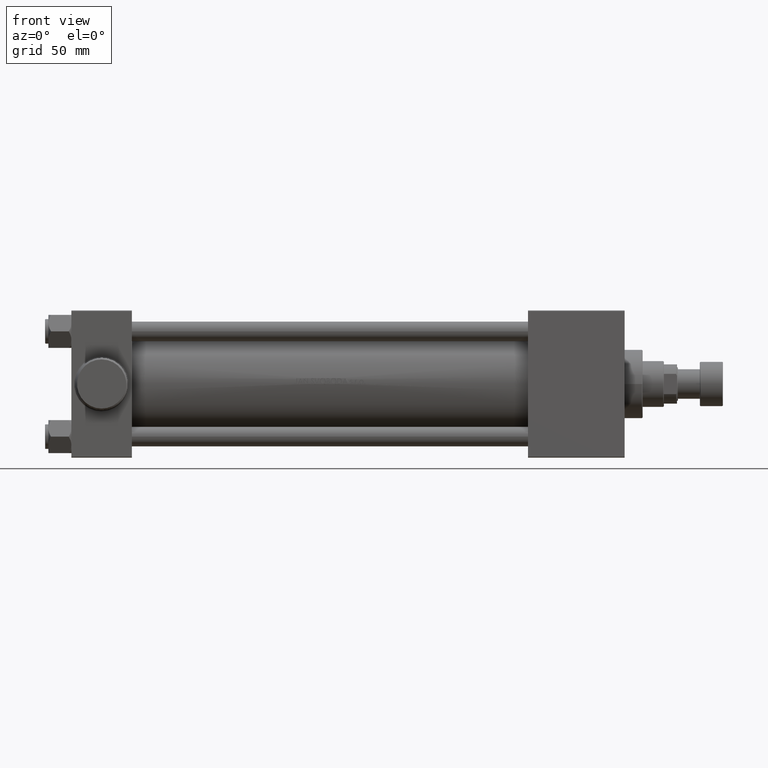
[diagram: clean part render]
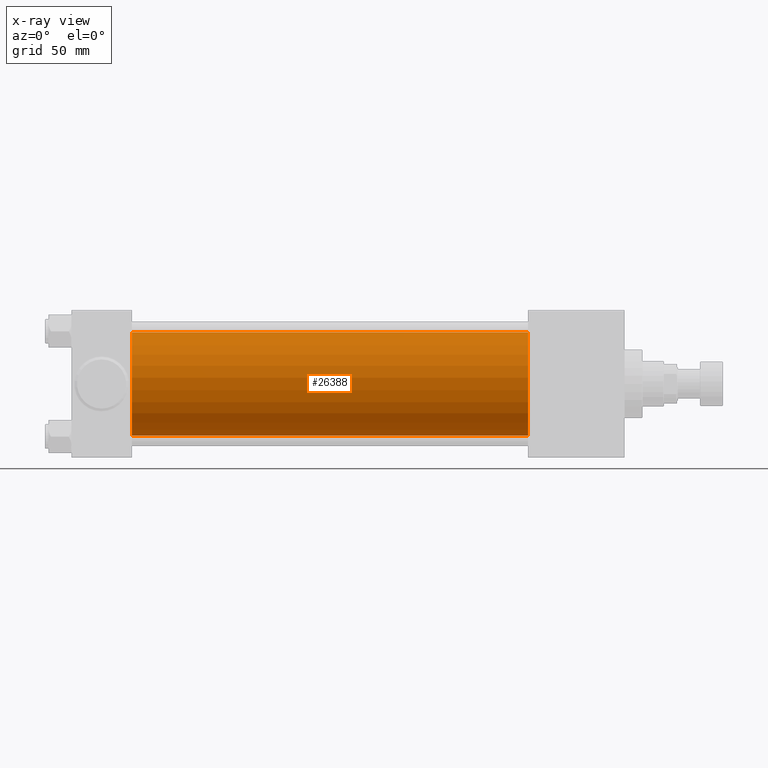
[diagram: x-ray — body ghosted, one internal face saturated and labeled with its STEP entity id]
A machine part, front view, then the same camera in x-ray: the body is ghosted and one INTERNAL B-rep face — a face not visible from any outside direction — is saturated and labeled: STEP entity #26388.
In plain terms, the highlighted cylindrical surface (partial cylindrical patch) has radius 31.5 mm, axis along (-1, -0, -0).
Its self-contained STEP definition (entity closure, byte-faithful):
#43 = CARTESIAN_POINT ( 'NONE',  ( 37.00000000000000000, -3.469446951953614189E-15, 0.000000000000000000 ) ) ;
#1560 = ORIENTED_EDGE ( 'NONE', *, *, #17409, .F. ) ;
#2549 = AXIS2_PLACEMENT_3D ( 'NONE', #43, #40215, #6922 ) ;
#2859 = DIRECTION ( 'NONE',  ( 1.000000000000000000, 0.000000000000000000, 0.000000000000000000 ) ) ;
#4035 = VERTEX_POINT ( 'NONE', #30421 ) ;
#4460 = EDGE_CURVE ( 'NONE', #4035, #14137, #30241, .T. ) ;
#6922 = DIRECTION ( 'NONE',  ( 0.000000000000000000, 0.000000000000000000, -1.000000000000000000 ) ) ;
#6931 = AXIS2_PLACEMENT_3D ( 'NONE', #13727, #13964, #39024 ) ;
#8270 = EDGE_CURVE ( 'NONE', #4035, #41099, #37346, .T. ) ;
#8422 = CARTESIAN_POINT ( 'NONE',  ( 278.9999999999999432, 3.881904653605483521E-16, -31.50000000000000000 ) ) ;
#9953 = CYLINDRICAL_SURFACE ( 'NONE', #6931, 31.50000000000000000 ) ;
#13586 = VECTOR ( 'NONE', #37111, 1000.000000000000000 ) ;
#13727 = CARTESIAN_POINT ( 'NONE',  ( 278.9999999999999432, -3.469446951953614189E-15, 0.000000000000000000 ) ) ;
#13964 = DIRECTION ( 'NONE',  ( -1.000000000000000000, -0.000000000000000000, -0.000000000000000000 ) ) ;
#14137 = VERTEX_POINT ( 'NONE', #8422 ) ;
#17409 = EDGE_CURVE ( 'NONE', #41099, #29075, #34271, .T. ) ;
#17670 = VECTOR ( 'NONE', #28992, 1000.000000000000000 ) ;
#17878 = ORIENTED_EDGE ( 'NONE', *, *, #8270, .F. ) ;
#20428 = AXIS2_PLACEMENT_3D ( 'NONE', #31012, #2859, #39021 ) ;
#20980 = LINE ( 'NONE', #28763, #17670 ) ;
#21468 = ORIENTED_EDGE ( 'NONE', *, *, #21806, .T. ) ;
#21806 = EDGE_CURVE ( 'NONE', #14137, #29075, #20980, .T. ) ;
#25309 = CARTESIAN_POINT ( 'NONE',  ( 37.00000000000000000, -3.469446951953614189E-15, 31.50000000000000000 ) ) ;
#26388 = ADVANCED_FACE ( 'NONE', ( #27932 ), #9953, .F. ) ;
#27932 = FACE_OUTER_BOUND ( 'NONE', #37561, .T. ) ;
#28763 = CARTESIAN_POINT ( 'NONE',  ( 278.9999999999999432, 3.881904653605483521E-16, -31.50000000000000000 ) ) ;
#28992 = DIRECTION ( 'NONE',  ( -1.000000000000000000, -0.000000000000000000, -0.000000000000000000 ) ) ;
#29075 = VERTEX_POINT ( 'NONE', #36810 ) ;
#30241 = CIRCLE ( 'NONE', #20428, 31.50000000000000000 ) ;
#30421 = CARTESIAN_POINT ( 'NONE',  ( 278.9999999999999432, -3.469446951953614189E-15, 31.50000000000000000 ) ) ;
#31012 = CARTESIAN_POINT ( 'NONE',  ( 278.9999999999999432, -3.469446951953614189E-15, 0.000000000000000000 ) ) ;
#34271 = CIRCLE ( 'NONE', #2549, 31.50000000000000000 ) ;
#36810 = CARTESIAN_POINT ( 'NONE',  ( 37.00000000000000000, 3.881904653605483521E-16, -31.50000000000000000 ) ) ;
#37111 = DIRECTION ( 'NONE',  ( -1.000000000000000000, -0.000000000000000000, -0.000000000000000000 ) ) ;
#37346 = LINE ( 'NONE', #43745, #13586 ) ;
#37561 = EDGE_LOOP ( 'NONE', ( #42233, #21468, #1560, #17878 ) ) ;
#39021 = DIRECTION ( 'NONE',  ( 0.000000000000000000, 0.000000000000000000, -1.000000000000000000 ) ) ;
#39024 = DIRECTION ( 'NONE',  ( 0.000000000000000000, 0.000000000000000000, 1.000000000000000000 ) ) ;
#40215 = DIRECTION ( 'NONE',  ( 1.000000000000000000, 0.000000000000000000, 0.000000000000000000 ) ) ;
#41099 = VERTEX_POINT ( 'NONE', #25309 ) ;
#42233 = ORIENTED_EDGE ( 'NONE', *, *, #4460, .T. ) ;
#43745 = CARTESIAN_POINT ( 'NONE',  ( 278.9999999999999432, -3.469446951953614189E-15, 31.50000000000000000 ) ) ;